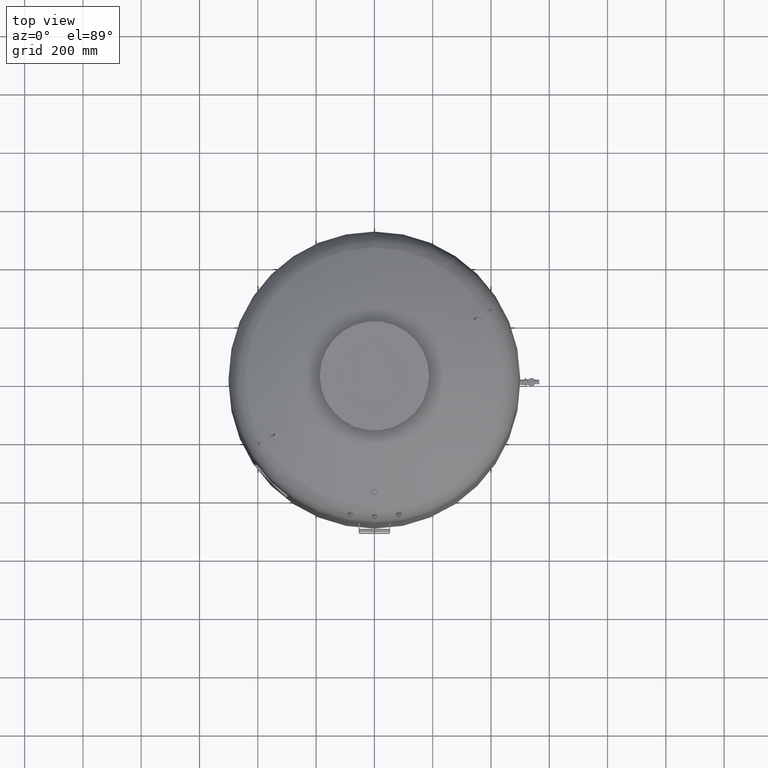
[diagram: clean part render]
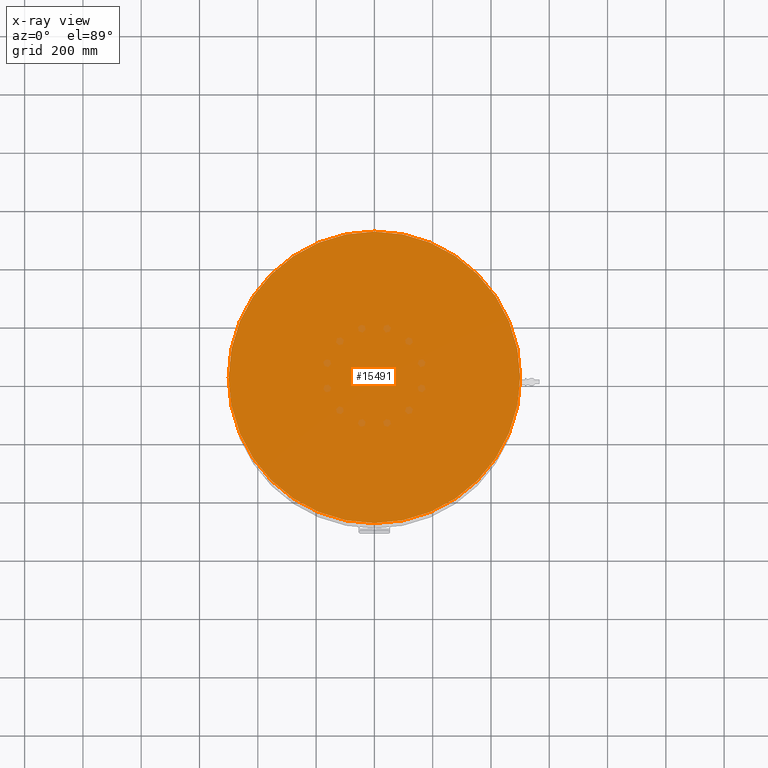
[diagram: x-ray — body ghosted, one internal face saturated and labeled with its STEP entity id]
A machine part, top view, then the same camera in x-ray: the body is ghosted and one INTERNAL B-rep face — a face not visible from any outside direction — is saturated and labeled: STEP entity #15491.
In plain terms, the highlighted planar face has unit normal (0, 0, 1).
Its self-contained STEP definition (entity closure, byte-faithful):
#15281=CARTESIAN_POINT('',(500.0,0.0,1722.500000000000000));
#15282=VERTEX_POINT('',#15281);
#15291=CARTESIAN_POINT('',(-500.0,-6.123032E-014,1722.500000000000000));
#15292=VERTEX_POINT('',#15291);
#15293=CARTESIAN_POINT('',(1.668796E-014,0.0,1722.500000000000000));
#15294=DIRECTION('',(0.0,0.0,1.0));
#15295=DIRECTION('',(1.0,0.0,0.0));
#15296=AXIS2_PLACEMENT_3D('',#15293,#15294,#15295);
#15297=CIRCLE('',#15296,500.0);
#15298=EDGE_CURVE('',#15292,#15282,#15297,.T.);
#15472=CARTESIAN_POINT('',(1.668796E-014,0.0,1722.500000000000000));
#15473=DIRECTION('',(0.0,0.0,1.0));
#15474=DIRECTION('',(1.0,0.0,0.0));
#15475=AXIS2_PLACEMENT_3D('',#15472,#15473,#15474);
#15476=CIRCLE('',#15475,500.0);
#15477=EDGE_CURVE('',#15282,#15292,#15476,.T.);
#15482=CARTESIAN_POINT('',(250.0,0.0,1722.500000000000000));
#15483=DIRECTION('',(0.0,0.0,1.0));
#15484=DIRECTION('',(1.0,0.0,0.0));
#15485=AXIS2_PLACEMENT_3D('',#15482,#15483,#15484);
#15486=PLANE('',#15485);
#15487=ORIENTED_EDGE('',*,*,#15477,.T.);
#15488=ORIENTED_EDGE('',*,*,#15298,.T.);
#15489=EDGE_LOOP('',(#15487,#15488));
#15490=FACE_OUTER_BOUND('',#15489,.T.);
#15491=ADVANCED_FACE('',(#15490),#15486,.T.);